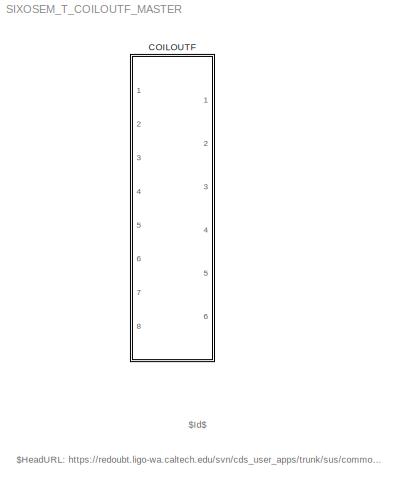
MODEL SIXOSEM_T_COILOUTF_MASTER
KIND library
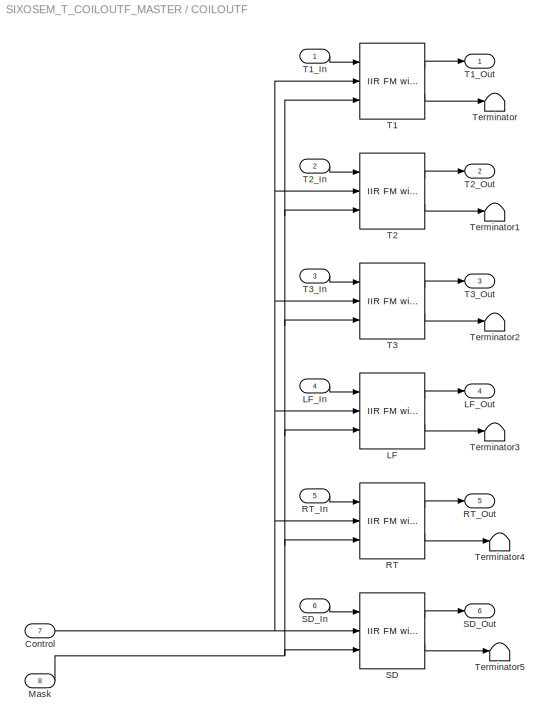
BLOCK [SubSystem] COILOUTF
  FunctionWithSeparateData = off
  MaskHideContents = off
  MinAlgLoopOccurrences = off
  Opaque = off
  Ports = [8, 6]
  PropExecContextOutsideSubsystem = off
  RTWSystemCode = Auto
  RequestExecContextInheritance = off
  SID = 1
BLOCK [Inport] COILOUTF/Control
  IconDisplay = Port number
  Port = 7
  SID = 58
BLOCK [Reference] COILOUTF/LF  REF=cdsFiltCtrl/IIR FM with control
  AttributesFormatString = %<Tag>
  Description = cdsFiltCntrl is the standard IIR filter module (exactly the same as cdsFilt) but with added control data output 'Ctrl'. Filter module digital signal output appears on the first output, which is called 'Val'. 'Ctrl' output has a bit pattern encoding the state of filter's on/off switches (FM1 through FM10). The bit values are:\n                                                                        ...<+4621ch>  <repeated x6 — deduplicated; at blocks: LF, RT, SD, T1, T2, T3>
  Ports = [3, 2]
  SID = 24
  SourceBlock = cdsFiltCtrl/IIR FM with control
  SourceType = SubSystem
  Tag = cdsFiltCtrl
BLOCK [Inport] COILOUTF/LF_In
  IconDisplay = Port number
  Port = 4
  SID = 5
BLOCK [Outport] COILOUTF/LF_Out
  IconDisplay = Port number
  Port = 4
  SID = 42
BLOCK [Inport] COILOUTF/Mask
  IconDisplay = Port number
  Port = 8
  SID = 59
BLOCK [Reference] COILOUTF/RT  REF=cdsFiltCtrl/IIR FM with control
  AttributesFormatString = %<Tag>
  Ports = [3, 2]
  SID = 28
  SourceBlock = cdsFiltCtrl/IIR FM with control
  SourceType = SubSystem
  Tag = cdsFiltCtrl
BLOCK [Inport] COILOUTF/RT_In
  IconDisplay = Port number
  Port = 5
  SID = 6
BLOCK [Outport] COILOUTF/RT_Out
  IconDisplay = Port number
  Port = 5
  SID = 43
BLOCK [Reference] COILOUTF/SD  REF=cdsFiltCtrl/IIR FM with control
  AttributesFormatString = %<Tag>
  Ports = [3, 2]
  SID = 30
  SourceBlock = cdsFiltCtrl/IIR FM with control
  SourceType = SubSystem
  Tag = cdsFiltCtrl
BLOCK [Inport] COILOUTF/SD_In
  IconDisplay = Port number
  Port = 6
  SID = 7
BLOCK [Outport] COILOUTF/SD_Out
  IconDisplay = Port number
  Port = 6
  SID = 44
BLOCK [Reference] COILOUTF/T1  REF=cdsFiltCtrl/IIR FM with control
  AttributesFormatString = %<Tag>
  Ports = [3, 2]
  SID = 9
  SourceBlock = cdsFiltCtrl/IIR FM with control
  SourceType = SubSystem
  Tag = cdsFiltCtrl
BLOCK [Inport] COILOUTF/T1_In
  IconDisplay = Port number
  SID = 2
BLOCK [Outport] COILOUTF/T1_Out
  IconDisplay = Port number
  SID = 39
BLOCK [Reference] COILOUTF/T2  REF=cdsFiltCtrl/IIR FM with control
  AttributesFormatString = %<Tag>
  Ports = [3, 2]
  SID = 10
  SourceBlock = cdsFiltCtrl/IIR FM with control
  SourceType = SubSystem
  Tag = cdsFiltCtrl
BLOCK [Inport] COILOUTF/T2_In
  IconDisplay = Port number
  Port = 2
  SID = 3
BLOCK [Outport] COILOUTF/T2_Out
  IconDisplay = Port number
  Port = 2
  SID = 40
BLOCK [Reference] COILOUTF/T3  REF=cdsFiltCtrl/IIR FM with control
  AttributesFormatString = %<Tag>
  Ports = [3, 2]
  SID = 11
  SourceBlock = cdsFiltCtrl/IIR FM with control
  SourceType = SubSystem
  Tag = cdsFiltCtrl
BLOCK [Inport] COILOUTF/T3_In
  IconDisplay = Port number
  Port = 3
  SID = 4
BLOCK [Outport] COILOUTF/T3_Out
  IconDisplay = Port number
  Port = 3
  SID = 41
BLOCK [Terminator] COILOUTF/Terminator
  SID = 60
BLOCK [Terminator] COILOUTF/Terminator1
  SID = 61
BLOCK [Terminator] COILOUTF/Terminator2
  SID = 62
BLOCK [Terminator] COILOUTF/Terminator3
  SID = 63
BLOCK [Terminator] COILOUTF/Terminator4
  SID = 64
BLOCK [Terminator] COILOUTF/Terminator5
  SID = 65
ANNOTATION (root): $HeadURL: https://redoubt.ligo-wa.caltech.edu/svn/cds_user_apps/trunk/sus/common/models/SIXOSEM_T_COILOUTF_MASTER.mdl $
ANNOTATION (root): $Id$
NET COILOUTF/Control:1 -> COILOUTF/LF:2, COILOUTF/RT:2, COILOUTF/SD:2, COILOUTF/T1:2, COILOUTF/T2:2, COILOUTF/T3:2
LINE COILOUTF/LF:1 -> COILOUTF/LF_Out:1
LINE COILOUTF/LF:2 -> COILOUTF/Terminator3:1
LINE COILOUTF/LF_In:1 -> COILOUTF/LF:1
NET COILOUTF/Mask:1 -> COILOUTF/LF:3, COILOUTF/RT:3, COILOUTF/SD:3, COILOUTF/T1:3, COILOUTF/T2:3, COILOUTF/T3:3
LINE COILOUTF/RT:1 -> COILOUTF/RT_Out:1
LINE COILOUTF/RT:2 -> COILOUTF/Terminator4:1
LINE COILOUTF/RT_In:1 -> COILOUTF/RT:1
LINE COILOUTF/SD:1 -> COILOUTF/SD_Out:1
LINE COILOUTF/SD:2 -> COILOUTF/Terminator5:1
LINE COILOUTF/SD_In:1 -> COILOUTF/SD:1
LINE COILOUTF/T1:1 -> COILOUTF/T1_Out:1
LINE COILOUTF/T1:2 -> COILOUTF/Terminator:1
LINE COILOUTF/T1_In:1 -> COILOUTF/T1:1
LINE COILOUTF/T2:1 -> COILOUTF/T2_Out:1
LINE COILOUTF/T2:2 -> COILOUTF/Terminator1:1
LINE COILOUTF/T2_In:1 -> COILOUTF/T2:1
LINE COILOUTF/T3:1 -> COILOUTF/T3_Out:1
LINE COILOUTF/T3:2 -> COILOUTF/Terminator2:1
LINE COILOUTF/T3_In:1 -> COILOUTF/T3:1
note: NET lines group one-source signal fan-out (src -> all destinations, sorted); 1:1 wires keep LINE
